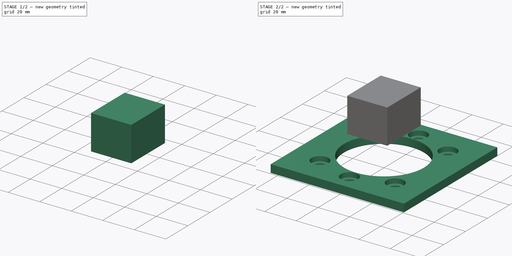
[diagram: build sequence overview — one tinted view per stage of 2, left to right]
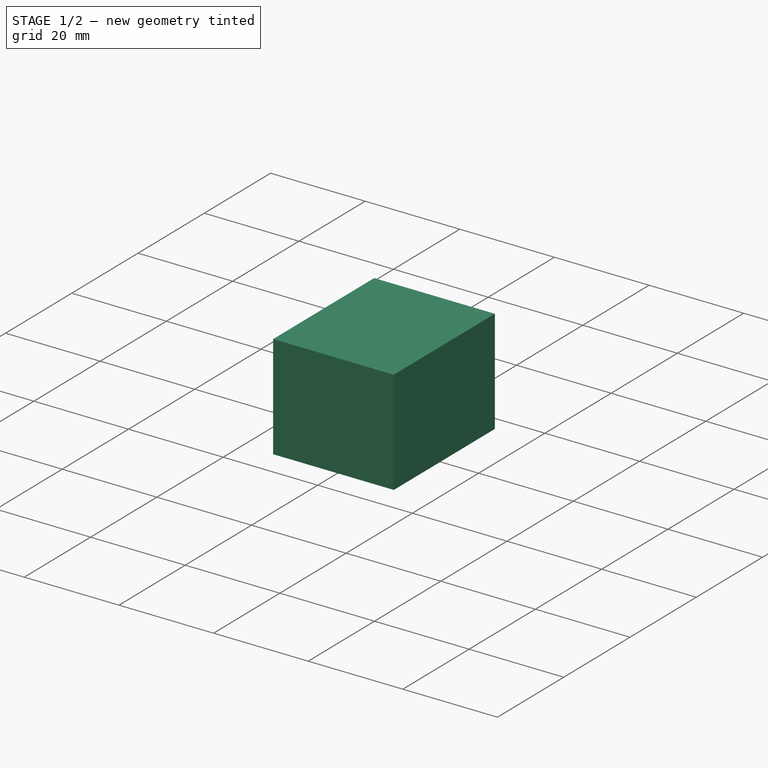
[diagram: stage 1 of 2 — iso view after this stage's code; geometry added in this stage tinted green]
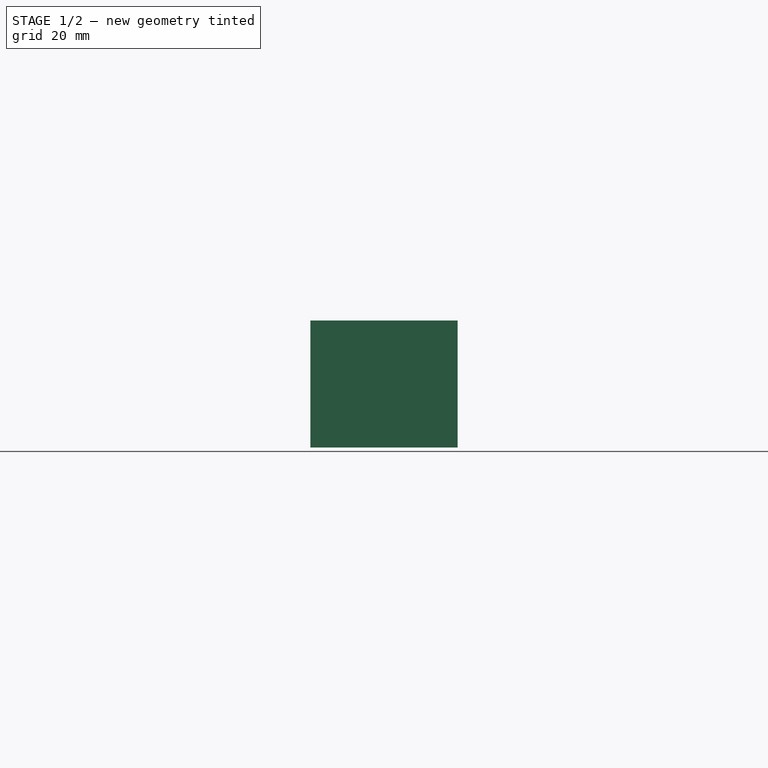
[diagram: stage 1 of 2 — front view after this stage's code; geometry added in this stage tinted green]
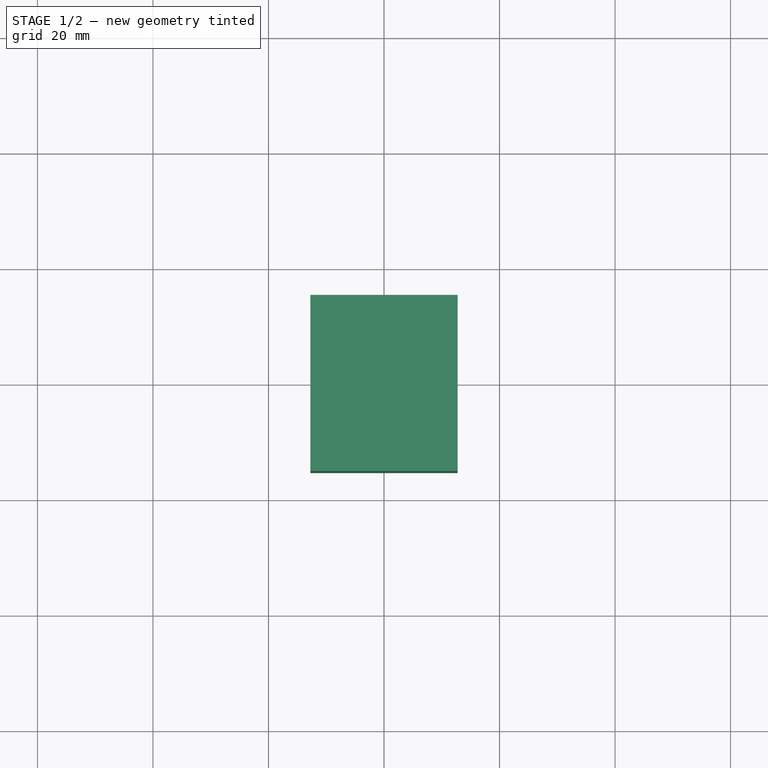
[diagram: stage 1 of 2 — top view after this stage's code; geometry added in this stage tinted green]
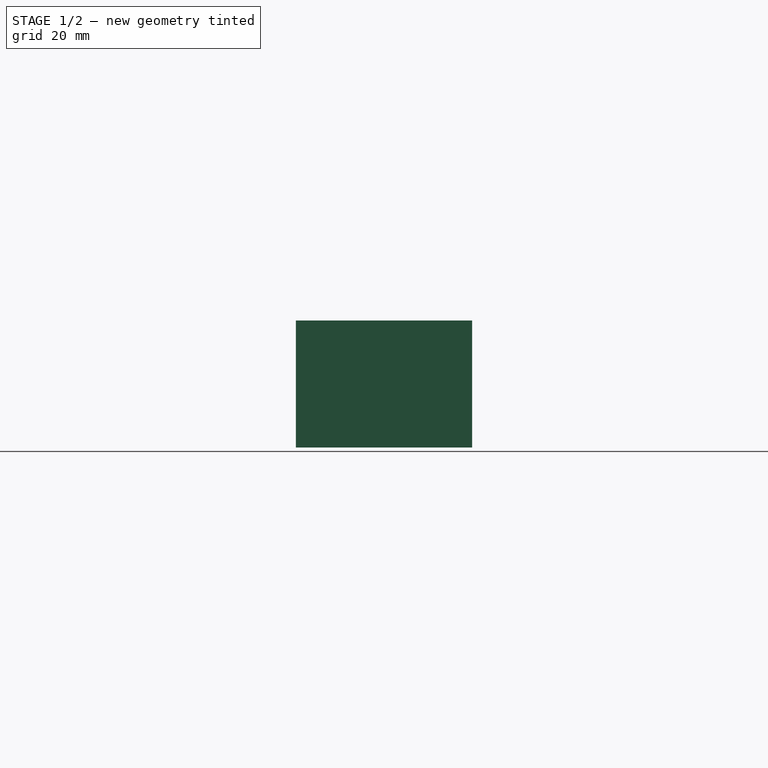
[diagram: stage 1 of 2 — right view after this stage's code; geometry added in this stage tinted green]
FCSTD DOCUMENT  (FreeCAD 0.21R33771 (Git))
Label: BypassPlanetaryMotor
License: All rights reserved
LicenseURL: http://en.wikipedia.org/wiki/All_rights_reserved
objects: Sketcher::SketchObject×4, PartDesign::Pad×3, PartDesign::Body×2, PartDesign::Pocket×1
note: 14 computed .brp shape members not serialized (recipe doc carries the construction recipe); baked Part::Feature solids carry a one-line shape summary decoded from their .brp

FEATURE [PartDesign::Body] Body  label="MainBody"
  Group = -> [Sketch,Pad,Sketch005,Pocket001]
  Origin = -> Origin
  Tip = -> Pocket001
FEATURE [Sketcher::SketchObject] Sketch006  label="AttachementSketch001"
  AttachmentOffset = pos=(0,0,20) rot=(0,0,1;0rad)
  FullyConstrained = true
  MapMode = 5
  Placement = pos=(0,0,20) rot=(0,0,1;0rad)
  Support = -> [XY_Plane001]
  sketch-geometry (10):
    g0: LineSegment StartX=-12.75 StartY=15.25 StartZ=0 EndX=-12.75 EndY=-15.25 EndZ=0
    g1: LineSegment StartX=-12.75 StartY=-15.25 StartZ=0 EndX=12.75 EndY=-15.25 EndZ=0
    g2: LineSegment StartX=12.75 StartY=-15.25 StartZ=0 EndX=12.75 EndY=15.25 EndZ=0
    g3: LineSegment StartX=12.75 StartY=15.25 StartZ=0 EndX=-12.75 EndY=15.25 EndZ=0
    g4: GeomPoint X=0 Y=0 Z=0
    g5: LineSegment StartX=-8.75 StartY=11.25 StartZ=0 EndX=-8.75 EndY=-11.25 EndZ=0
    g6: LineSegment StartX=-8.75 StartY=-11.25 StartZ=0 EndX=8.75 EndY=-11.25 EndZ=0
    g7: LineSegment StartX=8.75 StartY=-11.25 StartZ=0 EndX=8.75 EndY=11.25 EndZ=0
    g8: LineSegment StartX=8.75 StartY=11.25 StartZ=0 EndX=-8.75 EndY=11.25 EndZ=0
    g9: GeomPoint X=0 Y=0 Z=0
  constraints (24):
    c: Coincident(g0,g1)
    c: Coincident(g1,g2)
    c: Coincident(g2,g3)
    c: Coincident(g3,g0)
    c: Horizontal(g1)
    c: Horizontal(g3)
    c: Vertical(g0)
    c: Vertical(g2)
    c: Symmetric(g1,g0,g4)
    c: Coincident(g4,g-1)
    c: Coincident(g5,g6)
    c: Coincident(g6,g7)
    c: Coincident(g7,g8)
    c: Coincident(g8,g5)
    c: Horizontal(g6)
    c: Horizontal(g8)
    c: Vertical(g5)
    c: Vertical(g7)
    c: Symmetric(g6,g5,g9)
    c: Coincident(g9,g4)
    c: DistanceY(g7,g7) = 22.5
    c: DistanceX(g8,g8) = 17.5
    c: DistanceY(g7,g2) = 4
    c: DistanceX(g7,g2) = 4
FEATURE [PartDesign::Pad] Pad001  label="AttachementPad001"
  Direction = (0,0,1)
  Length = 20
  Length2 = 10
  Profile = -> Sketch006
  ReferenceAxis = -> Sketch006 [N_Axis]
  Type = 0
FEATURE [Sketcher::SketchObject] Sketch007  label="BaseAttachementSketch"
  ExternalGeometry = -> [Pad001]
  FullyConstrained = true
  MapMode = 5
  Placement = pos=(0,0,40) rot=(0,0,1;0rad)
  Support = -> [Pad001]
  sketch-geometry (4):
    g0: LineSegment StartX=-12.75 StartY=15.25 StartZ=0 EndX=12.75 EndY=15.25 EndZ=0
    g1: LineSegment StartX=12.75 StartY=15.25 StartZ=0 EndX=12.75 EndY=-15.25 EndZ=0
    g2: LineSegment StartX=12.75 StartY=-15.25 StartZ=0 EndX=-12.75 EndY=-15.25 EndZ=0
    g3: LineSegment StartX=-12.75 StartY=-15.25 StartZ=0 EndX=-12.75 EndY=15.25 EndZ=0
  constraints (10):
    c: Coincident(g0,g1)
    c: Coincident(g1,g2)
    c: Coincident(g2,g3)
    c: Coincident(g3,g0)
    c: Horizontal(g0)
    c: Horizontal(g2)
    c: Vertical(g1)
    c: Vertical(g3)
    c: Coincident(g0,g-3)
    c: Coincident(g1,g-4)
FEATURE [PartDesign::Pad] Pad002  label="BaseAttachementPad"
  BaseFeature = -> Pad001
  Direction = (0,0,1)
  Length = 2
  Length2 = 10
  Profile = -> Sketch007
  ReferenceAxis = -> Sketch007 [N_Axis]
  Type = 0
FEATURE [PartDesign::Body] Body001  label="Body"
  Group = -> [Sketch006,Pad001,Sketch007,Pad002]
  Origin = -> Origin001
  Tip = -> Pad002
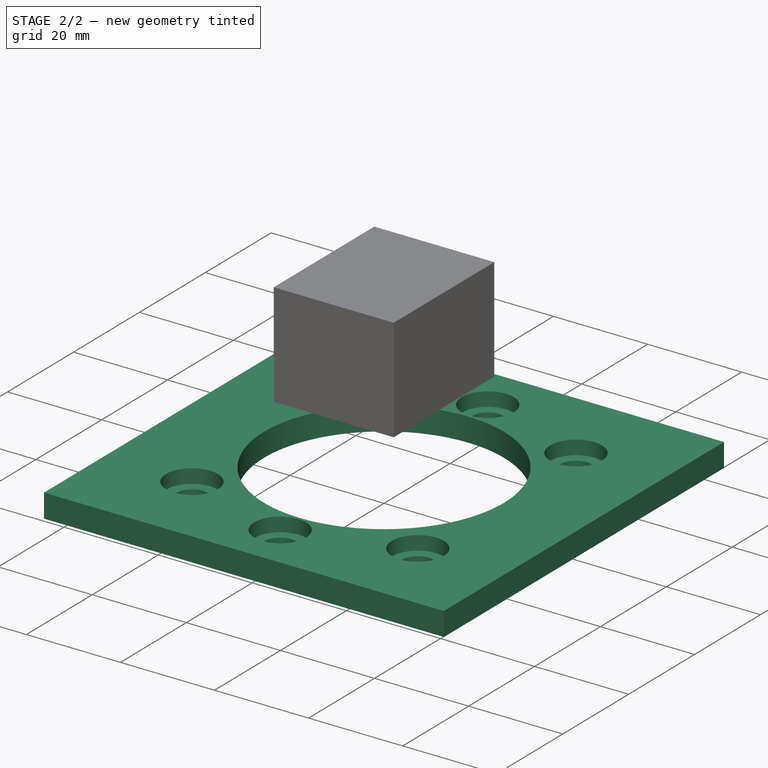
[diagram: stage 2 of 2 — iso view after this stage's code; geometry added in this stage tinted green]
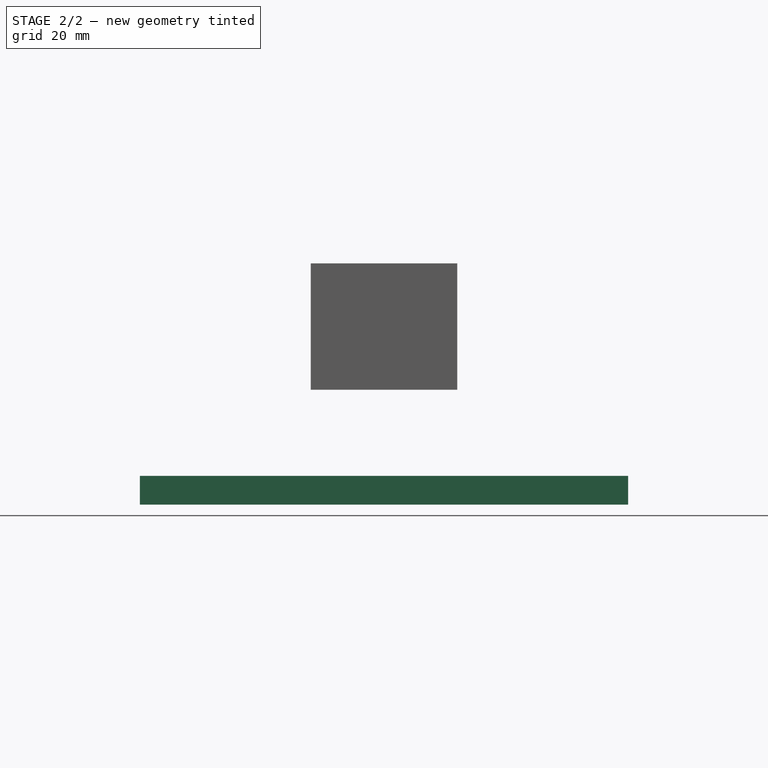
[diagram: stage 2 of 2 — front view after this stage's code; geometry added in this stage tinted green]
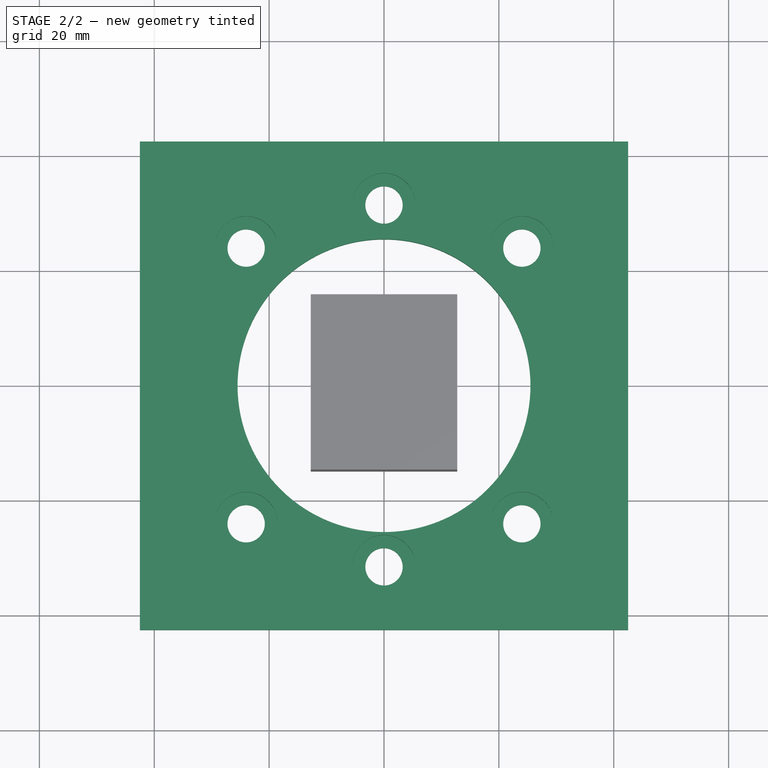
[diagram: stage 2 of 2 — top view after this stage's code; geometry added in this stage tinted green]
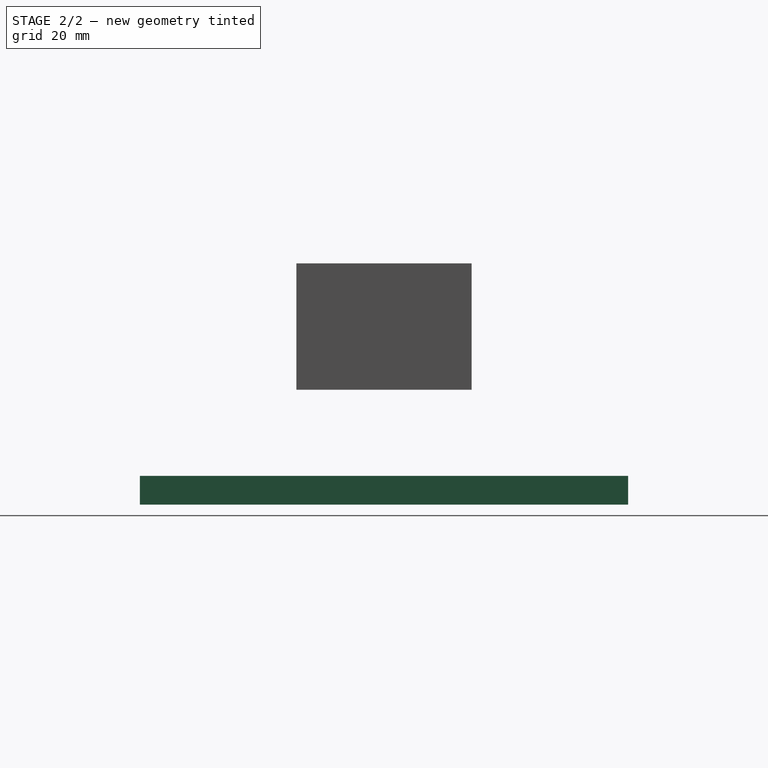
[diagram: stage 2 of 2 — right view after this stage's code; geometry added in this stage tinted green]
FEATURE [Sketcher::SketchObject] Sketch  label="AttachementSketch"
  FullyConstrained = true
  MapMode = 5
  Support = -> [XY_Plane]
  expr: Constraints[12] = .Constraints.skrewDia
  sketch-geometry (13):
    g0: GeomPoint X=0 Y=0 Z=0
    g1: Circle CenterX=0 CenterY=0 CenterZ=0 NormalX=0 NormalY=0 NormalZ=1 AngleXU=0 Radius=25.5
    g2: Circle CenterX=-24 CenterY=24 CenterZ=0 NormalX=0 NormalY=0 NormalZ=1 AngleXU=0 Radius=3.25
    g3: Circle CenterX=0 CenterY=31.5 CenterZ=0 NormalX=0 NormalY=0 NormalZ=1 AngleXU=0 Radius=3.25
    g4: Circle CenterX=24 CenterY=24 CenterZ=0 NormalX=0 NormalY=0 NormalZ=1 AngleXU=0 Radius=3.25
    g5: Circle CenterX=0 CenterY=-31.5 CenterZ=0 NormalX=0 NormalY=0 NormalZ=1 AngleXU=0 Radius=3.25
    g6: Circle CenterX=24 CenterY=-24 CenterZ=0 NormalX=0 NormalY=0 NormalZ=1 AngleXU=0 Radius=3.25
    g7: Circle CenterX=-24 CenterY=-24 CenterZ=0 NormalX=0 NormalY=0 NormalZ=1 AngleXU=0 Radius=3.25
    g8: LineSegment StartX=-42.5 StartY=42.5 StartZ=0 EndX=-42.5 EndY=-42.5 EndZ=0
    g9: LineSegment StartX=-42.5 StartY=-42.5 StartZ=0 EndX=42.5 EndY=-42.5 EndZ=0
    g10: LineSegment StartX=42.5 StartY=-42.5 StartZ=0 EndX=42.5 EndY=42.5 EndZ=0
    g11: LineSegment StartX=42.5 StartY=42.5 StartZ=0 EndX=-42.5 EndY=42.5 EndZ=0
    g12: GeomPoint X=0 Y=0 Z=0
  constraints (30):
    c: Coincident(g0,g-1)
    c: Coincident(g1,g0)
    c: Diameter(g1) = 51
    c: PointOnObject(g3,g-2)
    c: Vertical(g7,g2)
    c: Horizontal(g2,g4)
    c: DistanceY(g6,g4) = 48
    c: Diameter(g2) = 6.5  'skrewDia'
    c: Equal(g3,g4)
    c: Equal(g3,g6)
    c: Equal(g3,g5)
    c: Equal(g3,g7)
    c: Diameter(g3) = 6.5
    c: DistanceX(g7,g6) = 48
    c: Symmetric(g7,g6,g-2)
    c: Symmetric(g4,g6,g-1)
    c: Symmetric(g3,g5,g1)
    c: DistanceY(g5,g3) = 63
    c: Coincident(g8,g9)
    c: Coincident(g9,g10)
    c: Coincident(g10,g11)
    c: Coincident(g11,g8)
    c: Horizontal(g9)
    c: Horizontal(g11)
    c: Vertical(g8)
    c: Vertical(g10)
    c: Symmetric(g9,g8,g12)
    c: Coincident(g12,g1)
    c: Equal(g11,g10)
    c: DistanceX(g11,g11) = 85
FEATURE [PartDesign::Pad] Pad  label="AttachementPad"
  Direction = (0,0,1)
  Length = 5
  Length2 = 10
  Profile = -> Sketch
  ReferenceAxis = -> Sketch [N_Axis]
  Type = 0
FEATURE [Sketcher::SketchObject] Sketch005  label="BaseSkrewHeadSketch"
  AttachmentOffset = pos=(0,0,2) rot=(0,0,1;0rad)
  ExternalGeometry = -> [Pad]
  FullyConstrained = true
  MapMode = 5
  Placement = pos=(0,0,2) rot=(0,0,1;0rad)
  Support = -> [XY_Plane]
  sketch-geometry (6):
    g0: Circle CenterX=-24 CenterY=24 CenterZ=0 NormalX=0 NormalY=0 NormalZ=1 AngleXU=0 Radius=5.5
    g1: Circle CenterX=24 CenterY=-24 CenterZ=0 NormalX=0 NormalY=0 NormalZ=1 AngleXU=0 Radius=5.5
    g2: Circle CenterX=0 CenterY=31.5 CenterZ=0 NormalX=0 NormalY=0 NormalZ=1 AngleXU=0 Radius=5.5
    g3: Circle CenterX=24 CenterY=24 CenterZ=0 NormalX=0 NormalY=0 NormalZ=1 AngleXU=0 Radius=5.5
    g4: Circle CenterX=-24 CenterY=-24 CenterZ=0 NormalX=0 NormalY=0 NormalZ=1 AngleXU=0 Radius=5.5
    g5: Circle CenterX=0 CenterY=-31.5 CenterZ=0 NormalX=0 NormalY=0 NormalZ=1 AngleXU=0 Radius=5.5
  constraints (12):
    c: Coincident(g0,g-5)
    c: Coincident(g1,g-4)
    c: Coincident(g2,g-3)
    c: Coincident(g3,g-8)
    c: Coincident(g4,g-7)
    c: Coincident(g5,g-6)
    c: Equal(g3,g4)
    c: Equal(g3,g5)
    c: Equal(g3,g0)
    c: Equal(g3,g1)
    c: Equal(g3,g2)
    c: Diameter(g3) = 11  'skrewHeadDia'
FEATURE [PartDesign::Pocket] Pocket001  label="BaseSkrewHeadPocket"
  BaseFeature = -> Pad
  Direction = (0,0,-1)
  Length = 5
  Length2 = 5
  Profile = -> Sketch005
  ReferenceAxis = -> Sketch005 [N_Axis]
  Reversed = true
  Type = 0
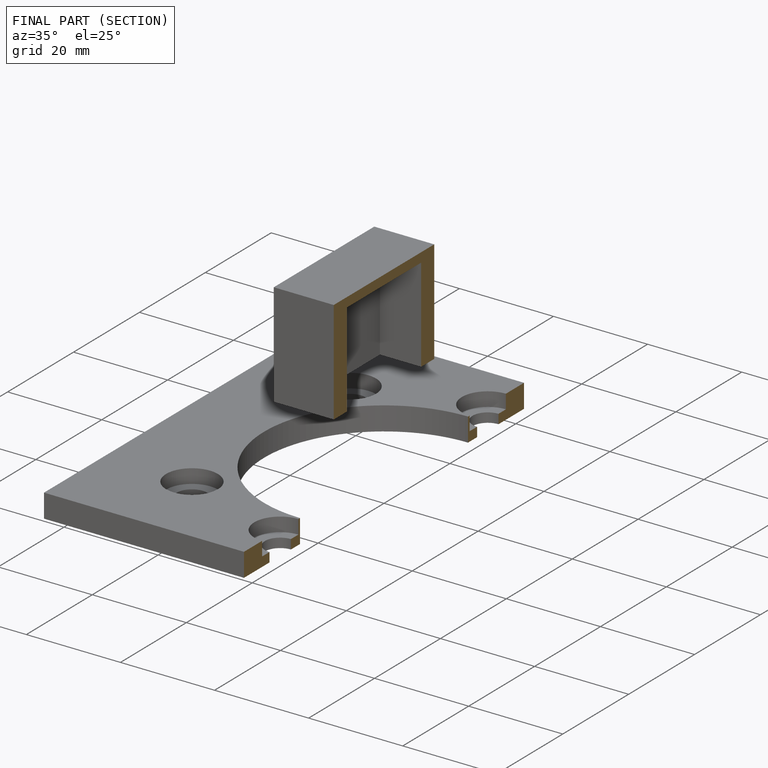
[diagram: finished part — half-section view (interior)]
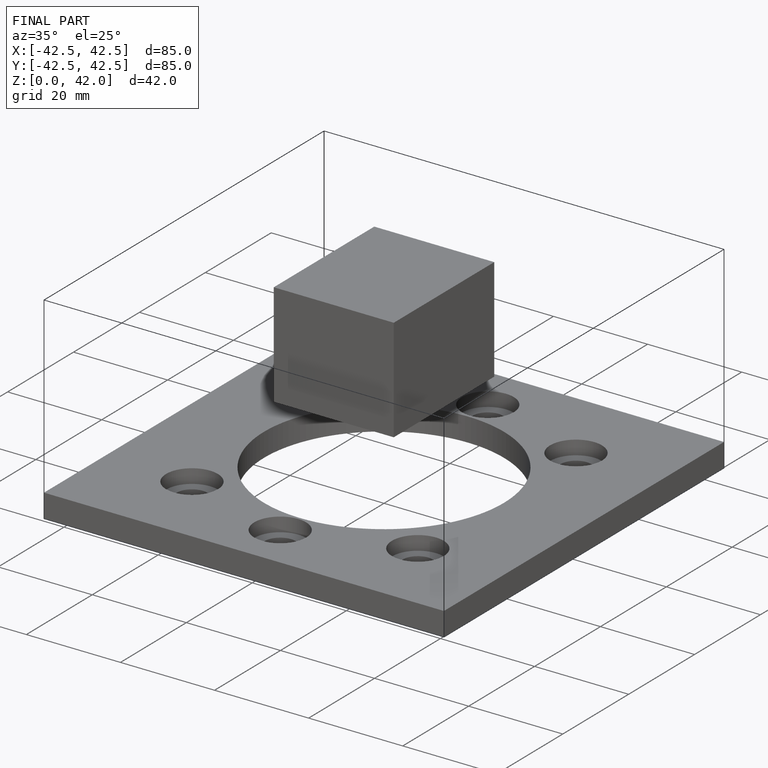
[diagram: finished part — iso view with bounding-box wireframe]
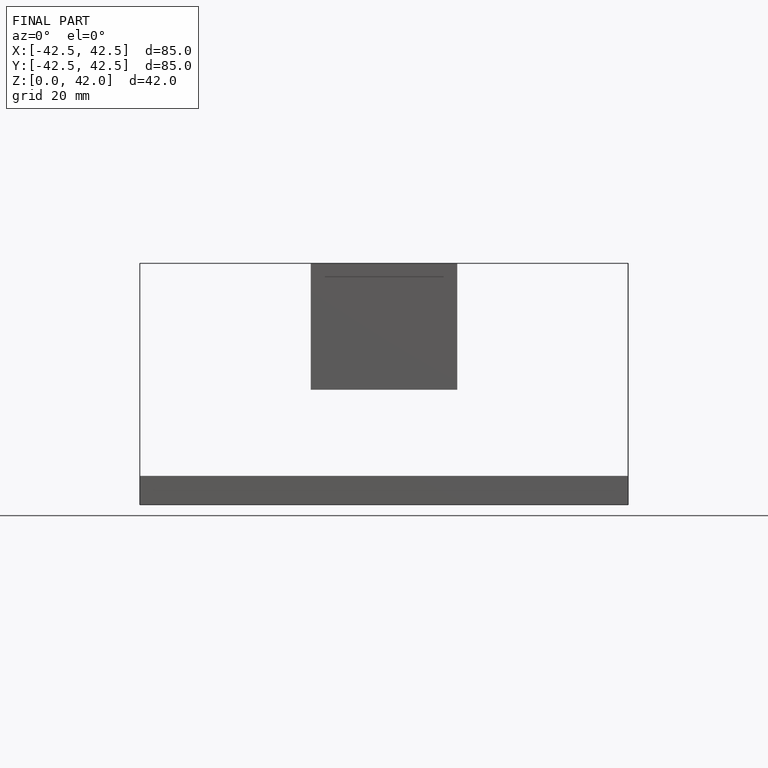
[diagram: finished part — front view with bounding-box wireframe]
